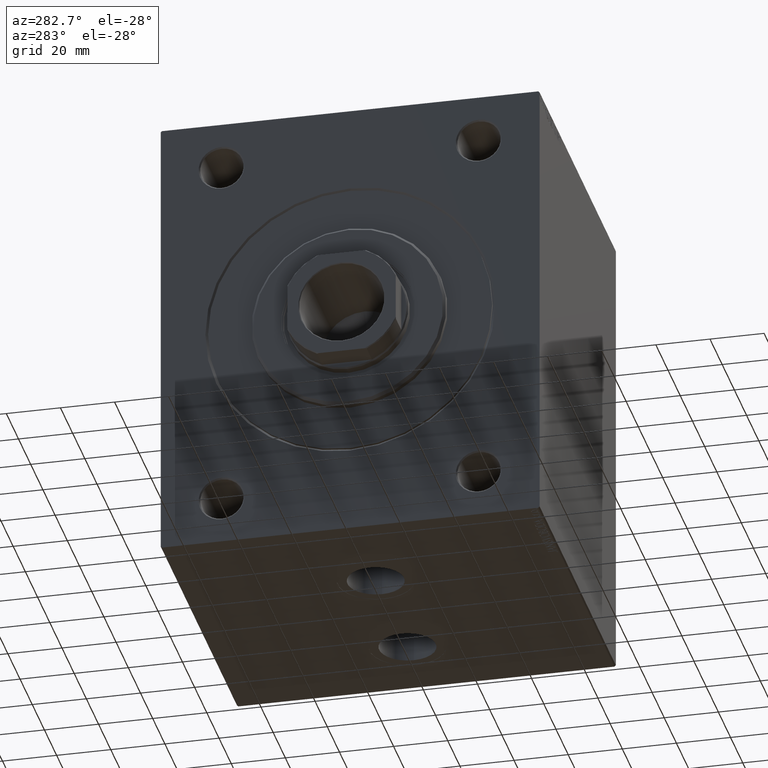
[diagram: clean part render]
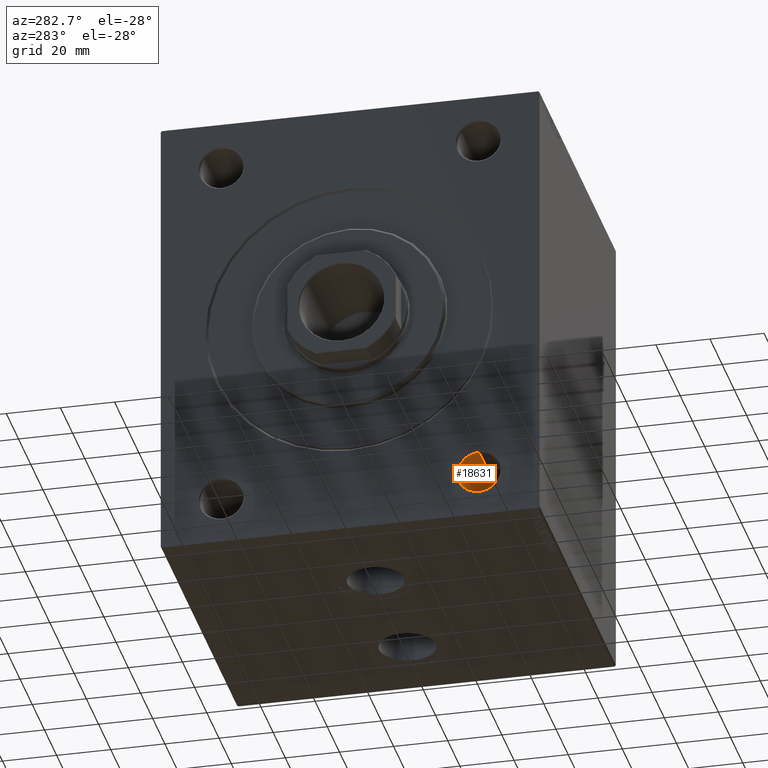
[diagram: same view with one face highlighted and labeled with its STEP entity id]
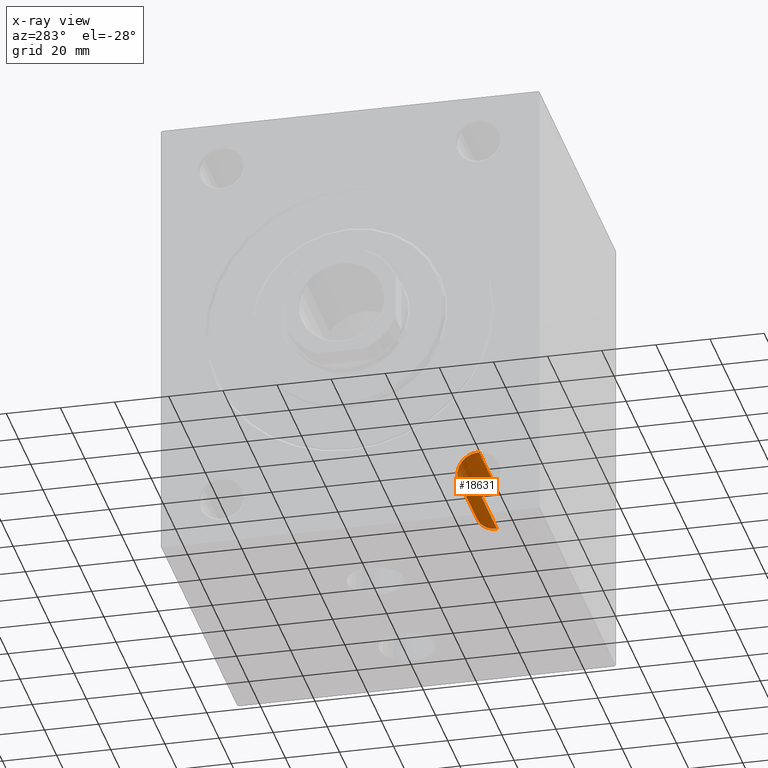
[diagram: x-ray of the same camera — body ghosted, the highlighted face saturated]
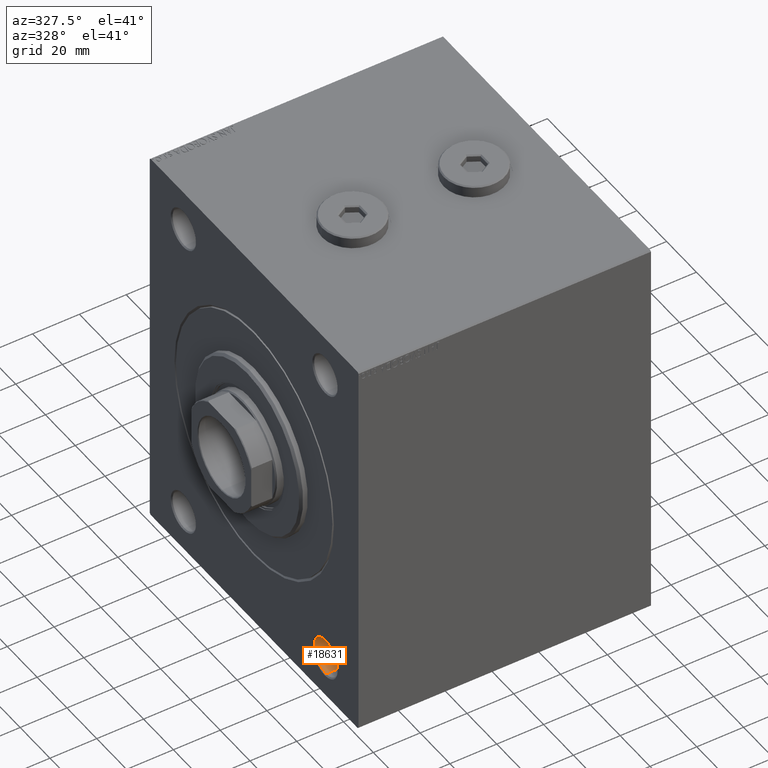
[diagram: same view with one face highlighted and labeled with its STEP entity id]
A machine part, auxiliary view. The second image highlights one B-rep face of the part: STEP entity #18631.
The next image is the same camera in x-ray: the body ghosted, the highlighted face saturated — about 4% of this face is hidden behind the body in this view.
A second angle (auxiliary view) of the same face is appended — the face is thin or edge-on in the first view.
In plain terms, the highlighted cylindrical surface (edge-blend (fillet) strip) has radius 8 mm, axis along (-1, -0, -0).
Its self-contained STEP definition (entity closure, byte-faithful):
#518 = DIRECTION ( 'NONE',  ( -1.000000000000000000, 0.000000000000000000, 0.000000000000000000 ) ) ;
#1779 = ORIENTED_EDGE ( 'NONE', *, *, #20678, .T. ) ;
#3483 = VERTEX_POINT ( 'NONE', #12997 ) ;
#3725 = DIRECTION ( 'NONE',  ( 0.000000000000000000, 0.000000000000000000, 1.000000000000000000 ) ) ;
#3963 = DIRECTION ( 'NONE',  ( 0.000000000000000000, 0.000000000000000000, -1.000000000000000000 ) ) ;
#4215 = CIRCLE ( 'NONE', #10095, 7.999999999999992895 ) ;
#4836 = EDGE_CURVE ( 'NONE', #3483, #35504, #28594, .T. ) ;
#6132 = EDGE_CURVE ( 'NONE', #35504, #16638, #19982, .T. ) ;
#6867 = VECTOR ( 'NONE', #23435, 1000.000000000000000 ) ;
#7615 = CYLINDRICAL_SURFACE ( 'NONE', #31346, 7.999999999999992895 ) ;
#7745 = ORIENTED_EDGE ( 'NONE', *, *, #6132, .F. ) ;
#10095 = AXIS2_PLACEMENT_3D ( 'NONE', #24904, #518, #3963 ) ;
#10270 = EDGE_LOOP ( 'NONE', ( #7745, #26965, #38363, #1779 ) ) ;
#12402 = DIRECTION ( 'NONE',  ( -1.000000000000000000, -0.000000000000000000, -0.000000000000000000 ) ) ;
#12997 = CARTESIAN_POINT ( 'NONE',  ( 30.00000000000000000, -47.50000000000000000, -59.50000000000002842 ) ) ;
#13832 = CARTESIAN_POINT ( 'NONE',  ( 30.00000000000000000, -47.50000000000000000, -67.50000000000001421 ) ) ;
#16072 = CARTESIAN_POINT ( 'NONE',  ( 0.000000000000000000, -47.50000000000000000, -75.50000000000001421 ) ) ;
#16638 = VERTEX_POINT ( 'NONE', #30690 ) ;
#16966 = VERTEX_POINT ( 'NONE', #26718 ) ;
#18631 = ADVANCED_FACE ( 'NONE', ( #24216 ), #7615, .F. ) ;
#19032 = AXIS2_PLACEMENT_3D ( 'NONE', #13832, #41468, #41694 ) ;
#19982 = LINE ( 'NONE', #16072, #6867 ) ;
#20678 = EDGE_CURVE ( 'NONE', #16966, #16638, #4215, .T. ) ;
#23435 = DIRECTION ( 'NONE',  ( -1.000000000000000000, -0.000000000000000000, -0.000000000000000000 ) ) ;
#24216 = FACE_OUTER_BOUND ( 'NONE', #10270, .T. ) ;
#24904 = CARTESIAN_POINT ( 'NONE',  ( 0.4999999999999865663, -47.50000000000000000, -67.50000000000001421 ) ) ;
#25131 = CARTESIAN_POINT ( 'NONE',  ( 30.00000000000000000, -47.50000000000000000, -75.50000000000001421 ) ) ;
#26718 = CARTESIAN_POINT ( 'NONE',  ( 0.4999999999999865663, -47.50000000000000000, -59.50000000000002842 ) ) ;
#26965 = ORIENTED_EDGE ( 'NONE', *, *, #4836, .F. ) ;
#28338 = DIRECTION ( 'NONE',  ( -1.000000000000000000, -0.000000000000000000, -0.000000000000000000 ) ) ;
#28594 = CIRCLE ( 'NONE', #19032, 7.999999999999992895 ) ;
#30690 = CARTESIAN_POINT ( 'NONE',  ( 0.4999999999999865663, -47.50000000000000000, -75.50000000000001421 ) ) ;
#31346 = AXIS2_PLACEMENT_3D ( 'NONE', #31790, #28338, #3725 ) ;
#31790 = CARTESIAN_POINT ( 'NONE',  ( 0.000000000000000000, -47.50000000000000000, -67.50000000000001421 ) ) ;
#35504 = VERTEX_POINT ( 'NONE', #25131 ) ;
#36572 = LINE ( 'NONE', #43931, #42964 ) ;
#38363 = ORIENTED_EDGE ( 'NONE', *, *, #39366, .T. ) ;
#39366 = EDGE_CURVE ( 'NONE', #3483, #16966, #36572, .T. ) ;
#41468 = DIRECTION ( 'NONE',  ( -1.000000000000000000, -0.000000000000000000, -0.000000000000000000 ) ) ;
#41694 = DIRECTION ( 'NONE',  ( 0.000000000000000000, 0.000000000000000000, 1.000000000000000000 ) ) ;
#42964 = VECTOR ( 'NONE', #12402, 1000.000000000000000 ) ;
#43931 = CARTESIAN_POINT ( 'NONE',  ( 0.000000000000000000, -47.50000000000000000, -59.50000000000002842 ) ) ;